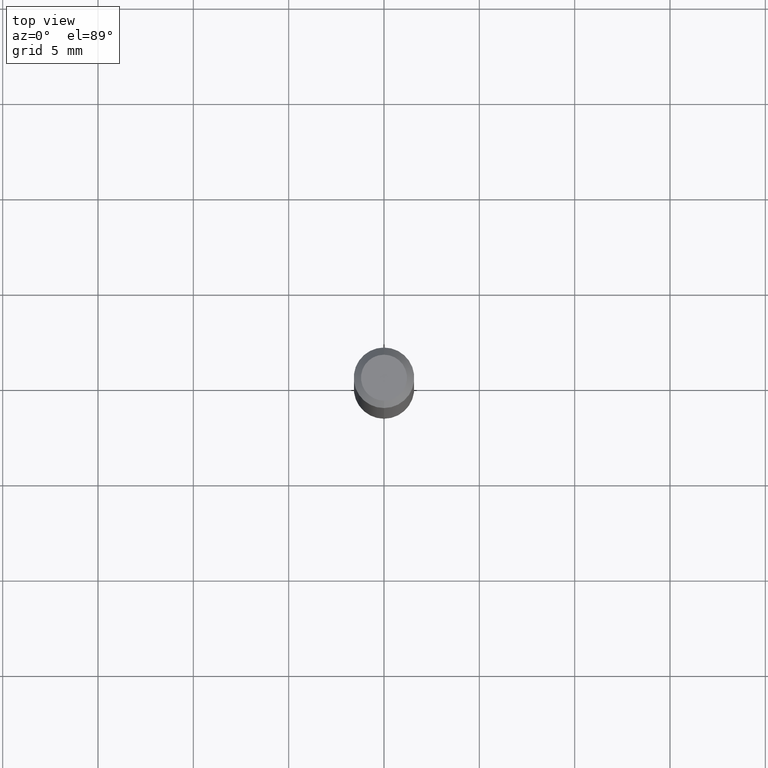
[diagram: clean part render]
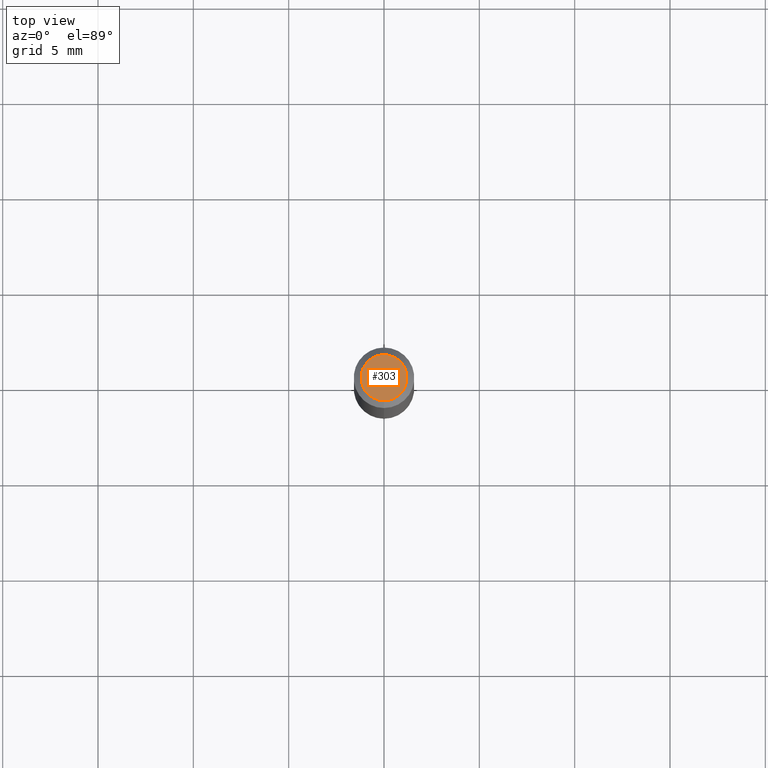
[diagram: same view with one face highlighted and labeled with its STEP entity id]
A machine part, top view. The second image highlights one B-rep face of the part: STEP entity #303.
In plain terms, the highlighted planar face has unit normal (0, -0, -1).
Its self-contained STEP definition (entity closure, byte-faithful):
#28 = AXIS2_PLACEMENT_3D ( 'NONE', #198, #359, #82 ) ;
#45 = CIRCLE ( 'NONE', #87, 0.04749999999999999362 ) ;
#82 = DIRECTION ( 'NONE',  ( -6.982962677686266711E-15, -1.000000000000000000, 3.491463705704607270E-15 ) ) ;
#87 = AXIS2_PLACEMENT_3D ( 'NONE', #325, #479, #218 ) ;
#146 = CIRCLE ( 'NONE', #28, 0.04749999999999999362 ) ;
#181 = CARTESIAN_POINT ( 'NONE',  ( 3.316907271900976096E-16, 0.04749999999999999362, -1.702751046039246706E-16 ) ) ;
#188 = FACE_OUTER_BOUND ( 'NONE', #436, .T. ) ;
#192 = AXIS2_PLACEMENT_3D ( 'NONE', #181, #351, #507 ) ;
#198 = CARTESIAN_POINT ( 'NONE',  ( 2.166979254474106188E-46, -3.093840863532492253E-32, -8.861157165911678374E-18 ) ) ;
#218 = DIRECTION ( 'NONE',  ( -6.982962677686266711E-15, -1.000000000000000000, 3.491463705704607270E-15 ) ) ;
#251 = VERTEX_POINT ( 'NONE', #275 ) ;
#275 = CARTESIAN_POINT ( 'NONE',  ( 3.840629472727447874E-16, 0.04749999999999999362, -1.747056831868805136E-16 ) ) ;
#276 = VERTEX_POINT ( 'NONE', #428 ) ;
#303 = ADVANCED_FACE ( 'NONE', ( #188 ), #307, .F. ) ;
#307 = PLANE ( 'NONE',  #192 ) ;
#325 = CARTESIAN_POINT ( 'NONE',  ( 2.166979254474106188E-46, -3.093840863532492253E-32, -8.861157165911678374E-18 ) ) ;
#346 = ORIENTED_EDGE ( 'NONE', *, *, #491, .T. ) ;
#351 = DIRECTION ( 'NONE',  ( 2.445481119339966703E-29, -3.491463705704607270E-15, -1.000000000000000000 ) ) ;
#359 = DIRECTION ( 'NONE',  ( -2.445481119339966983E-29, 3.491463705704607270E-15, 1.000000000000000000 ) ) ;
#428 = CARTESIAN_POINT ( 'NONE',  ( -3.773273898774340269E-16, -0.04749999999999999362, 1.569833688550571415E-16 ) ) ;
#436 = EDGE_LOOP ( 'NONE', ( #483, #346 ) ) ;
#476 = EDGE_CURVE ( 'NONE', #251, #276, #146, .T. ) ;
#479 = DIRECTION ( 'NONE',  ( -2.445481119339966983E-29, 3.491463705704607270E-15, 1.000000000000000000 ) ) ;
#483 = ORIENTED_EDGE ( 'NONE', *, *, #476, .T. ) ;
#491 = EDGE_CURVE ( 'NONE', #276, #251, #45, .T. ) ;
#507 = DIRECTION ( 'NONE',  ( 6.982962677686265922E-15, 1.000000000000000000, -3.491463705704607270E-15 ) ) ;